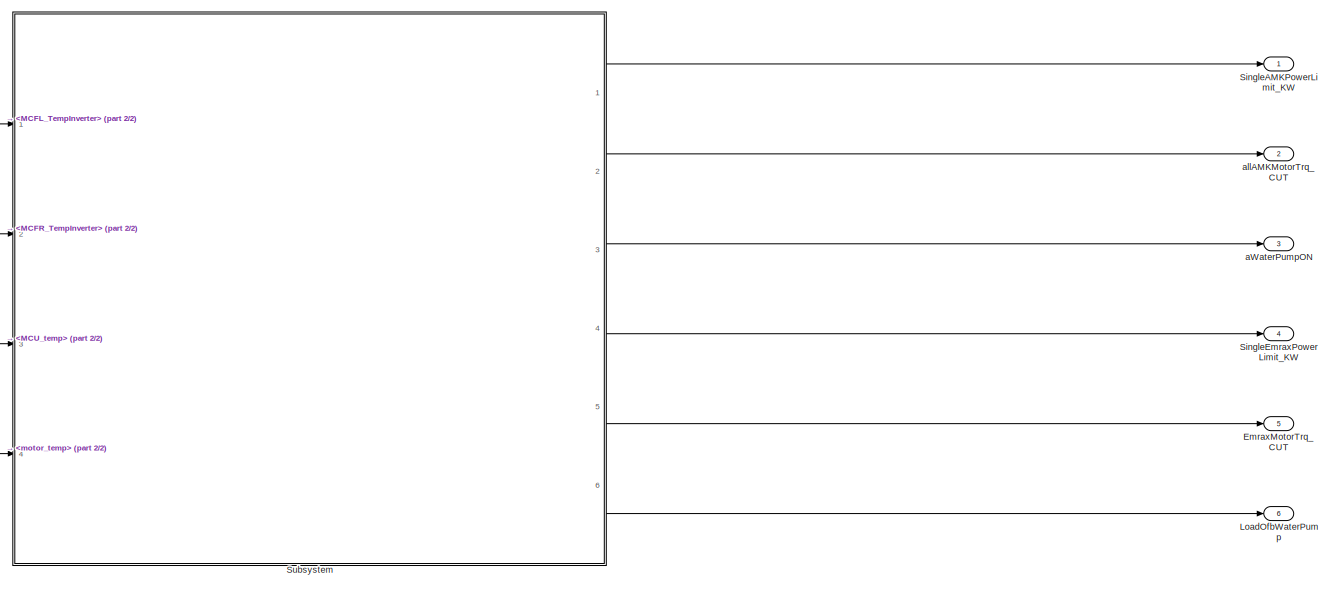
[diagram: root canvas - part 1/2, most of the canvas]
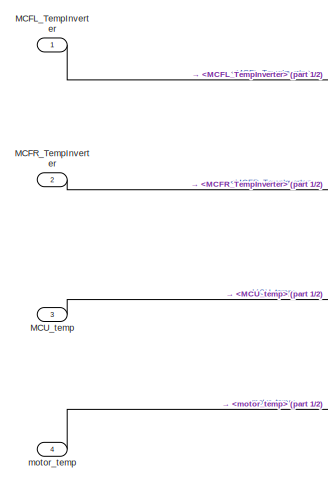
[diagram: root canvas - part 2/2, left side, full height]
MODEL slx_15fae6f88213
KIND model
CONFIG AbsTol = auto
CONFIG EnableMultiTasking = off
CONFIG FixedStep = auto
CONFIG MaxStep = auto
CONFIG MinStep = auto
CONFIG RelTol = 1e-3
CONFIG SampleTimeConstraint = Unconstrained
CONFIG Solver = VariableStepAuto
CONFIG SolverName = VariableStepAuto
CONFIG StartTime = 0.0
CONFIG StopTime = 10.0
BLOCK [Outport] EmraxMotorTrq_CUT
  IconDisplay = Port number
  Port = 5
BLOCK [Outport] LoadOfbWaterPump
  IconDisplay = Port number
  Port = 6
BLOCK [Inport] MCFL_TempInverter
  IconDisplay = Port number
BLOCK [Inport] MCFR_TempInverter
  IconDisplay = Port number
  Port = 2
BLOCK [Inport] MCU_temp
  IconDisplay = Port number
  Port = 3
BLOCK [Outport] SingleAMKPowerLimit_KW
  IconDisplay = Port number
BLOCK [Outport] SingleEmraxPowerLimit_KW
  IconDisplay = Port number
  Port = 4
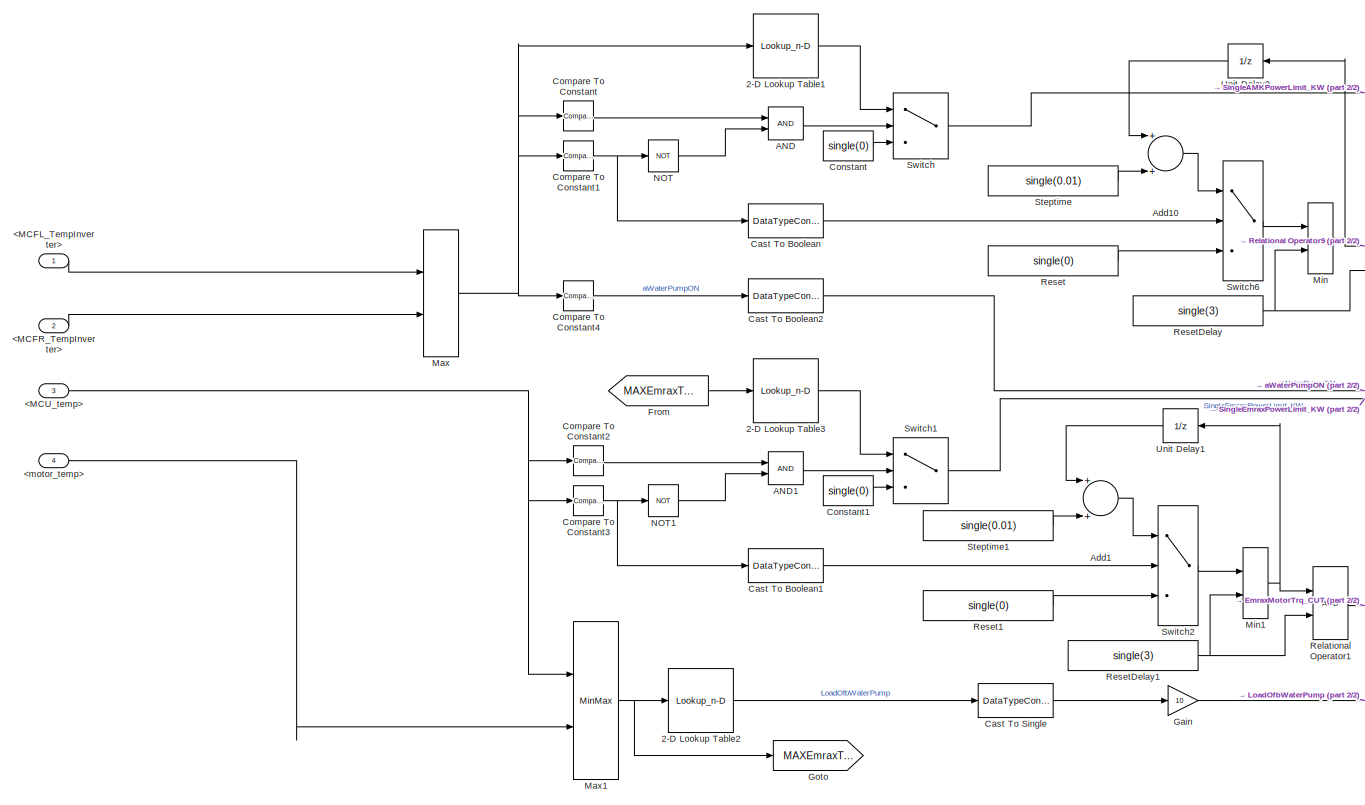
[diagram: Subsystem - part 1/2, most of the canvas]
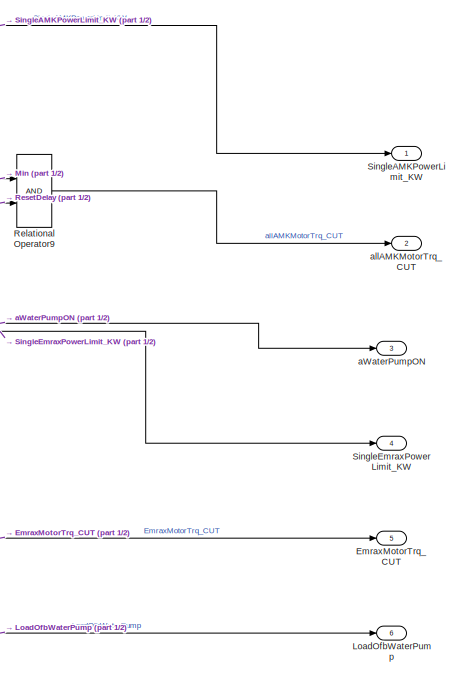
[diagram: Subsystem - part 2/2, right side, full height]
BLOCK [SubSystem] Subsystem
  Ports = [4, 6]
  RequestExecContextInheritance = off
BLOCK [Lookup_n-D] Subsystem/2-D Lookup Table1
  BreakpointsForDimension1 = [35,40,41,42,43,44,45,50]
  BreakpointsForDimension2 = [1:3]
  InternalRulePriority = Speed
  NumberOfTableDimensions = 1
  Ports = [1, 1]
  RndMeth = Simplest
  Table = [0,0,0.2,0.4,0.6,0.8,1,1]
BLOCK [Lookup_n-D] Subsystem/2-D Lookup Table2
  BreakpointsForDimension1 = [0;25;30;35;37;40;50]
  BreakpointsForDimension2 = [1:3]
  InternalRulePriority = Speed
  NumberOfTableDimensions = 1
  Ports = [1, 1]
  RndMeth = Simplest
  Table = [0;0;20;40;70;100;100]
BLOCK [Lookup_n-D] Subsystem/2-D Lookup Table3
  BreakpointsForDimension1 = [35,40,41,42,43,44,45,50]
  BreakpointsForDimension2 = [1:3]
  InternalRulePriority = Speed
  NumberOfTableDimensions = 1
  Ports = [1, 1]
  RndMeth = Simplest
  Table = [0,0,0.2,0.4,0.6,0.8,1,1]
BLOCK [Inport] Subsystem/<MCFL_TempInverter>
  IconDisplay = Port number
BLOCK [Inport] Subsystem/<MCFR_TempInverter>
  IconDisplay = Port number
  Port = 2
BLOCK [Inport] Subsystem/<MCU_temp>
  IconDisplay = Port number
  Port = 3
BLOCK [Inport] Subsystem/<motor_temp>
  IconDisplay = Port number
  Port = 4
BLOCK [Logic] Subsystem/AND
  AllPortsSameDT = off
  OutDataTypeStr = boolean
  Ports = [2, 1]
BLOCK [Logic] Subsystem/AND1
  AllPortsSameDT = off
  OutDataTypeStr = boolean
  Ports = [2, 1]
BLOCK [Sum] Subsystem/Add1
  InputSameDT = off
  OutDataTypeStr = Inherit: Inherit via internal rule
  Ports = [2, 1]
  SaturateOnIntegerOverflow = off
BLOCK [Sum] Subsystem/Add10
  InputSameDT = off
  OutDataTypeStr = Inherit: Inherit via internal rule
  Ports = [2, 1]
  SaturateOnIntegerOverflow = off
BLOCK [DataTypeConversion] Subsystem/Cast To Boolean
  OutDataTypeStr = boolean
  RndMeth = Floor
  SaturateOnIntegerOverflow = off
BLOCK [DataTypeConversion] Subsystem/Cast To Boolean1
  OutDataTypeStr = boolean
  RndMeth = Floor
  SaturateOnIntegerOverflow = off
BLOCK [DataTypeConversion] Subsystem/Cast To Boolean2
  OutDataTypeStr = boolean
  RndMeth = Floor
  SaturateOnIntegerOverflow = off
BLOCK [DataTypeConversion] Subsystem/Cast To Single
  OutDataTypeStr = single
  RndMeth = Floor
  SaturateOnIntegerOverflow = off
BLOCK [Reference] Subsystem/Compare To Constant  REF=simulink/Logic and Bit
Operations/Compare
To Constant
  Ports = [1, 1]
  SourceBlock = simulink/Logic and Bit\nOperations/Compare\nTo Constant
  SourceProductBaseCode = SL
  SourceProductName = Simulink
  SourceType = Compare To Constant
BLOCK [Reference] Subsystem/Compare To Constant1  REF=simulink/Logic and Bit
Operations/Compare
To Constant
  Ports = [1, 1]
  SourceBlock = simulink/Logic and Bit\nOperations/Compare\nTo Constant
  SourceProductBaseCode = SL
  SourceProductName = Simulink
  SourceType = Compare To Constant
BLOCK [Reference] Subsystem/Compare To Constant2  REF=simulink/Logic and Bit
Operations/Compare
To Constant
  Ports = [1, 1]
  SourceBlock = simulink/Logic and Bit\nOperations/Compare\nTo Constant
  SourceProductBaseCode = SL
  SourceProductName = Simulink
  SourceType = Compare To Constant
BLOCK [Reference] Subsystem/Compare To Constant3  REF=simulink/Logic and Bit
Operations/Compare
To Constant
  Ports = [1, 1]
  SourceBlock = simulink/Logic and Bit\nOperations/Compare\nTo Constant
  SourceProductBaseCode = SL
  SourceProductName = Simulink
  SourceType = Compare To Constant
BLOCK [Reference] Subsystem/Compare To Constant4  REF=simulink/Logic and Bit
Operations/Compare
To Constant
  Ports = [1, 1]
  SourceBlock = simulink/Logic and Bit\nOperations/Compare\nTo Constant
  SourceProductBaseCode = SL
  SourceProductName = Simulink
  SourceType = Compare To Constant
BLOCK [Constant] Subsystem/Constant
  Value = single(0)
BLOCK [Constant] Subsystem/Constant1
  Value = single(0)
BLOCK [Outport] Subsystem/EmraxMotorTrq_CUT
  IconDisplay = Port number
  Port = 5
BLOCK [From] Subsystem/From
  GotoTag = MAXEmraxTemp
BLOCK [Gain] Subsystem/Gain
  Gain = 10
  OutDataTypeStr = Inherit: Inherit via internal rule
  ParamDataTypeStr = Inherit: Inherit via internal rule
  SaturateOnIntegerOverflow = off
BLOCK [Goto] Subsystem/Goto
  GotoTag = MAXEmraxTemp
BLOCK [Outport] Subsystem/LoadOfbWaterPump
  IconDisplay = Port number
  Port = 6
BLOCK [MinMax] Subsystem/Max
  Function = max
  InputSameDT = off
  Inputs = 2
  Ports = [2, 1]
  SaturateOnIntegerOverflow = off
BLOCK [MinMax] Subsystem/Max1
  Function = max
  InputSameDT = off
  Inputs = 2
  Ports = [2, 1]
  SaturateOnIntegerOverflow = off
BLOCK [MinMax] Subsystem/Min
  InputSameDT = off
  Inputs = 2
  Ports = [2, 1]
  SaturateOnIntegerOverflow = off
BLOCK [MinMax] Subsystem/Min1
  InputSameDT = off
  Inputs = 2
  Ports = [2, 1]
  SaturateOnIntegerOverflow = off
BLOCK [Logic] Subsystem/NOT
  AllPortsSameDT = off
  Operator = NOT
  OutDataTypeStr = boolean
  Ports = [1, 1]
BLOCK [Logic] Subsystem/NOT1
  AllPortsSameDT = off
  Operator = NOT
  OutDataTypeStr = boolean
  Ports = [1, 1]
BLOCK [RelationalOperator] Subsystem/Relational Operator1
  InputSameDT = off
  OutDataTypeStr = boolean
  Ports = [2, 1]
  RndMeth = Simplest
BLOCK [RelationalOperator] Subsystem/Relational Operator9
  InputSameDT = off
  OutDataTypeStr = boolean
  Ports = [2, 1]
  RndMeth = Simplest
BLOCK [Constant] Subsystem/Reset
  Value = single(0)
BLOCK [Constant] Subsystem/Reset1
  Value = single(0)
BLOCK [Constant] Subsystem/ResetDelay
  Value = single(3)
BLOCK [Constant] Subsystem/ResetDelay1
  Value = single(3)
BLOCK [Outport] Subsystem/SingleAMKPowerLimit_KW
  IconDisplay = Port number
BLOCK [Outport] Subsystem/SingleEmraxPowerLimit_KW
  IconDisplay = Port number
  Port = 4
BLOCK [Constant] Subsystem/Steptime
  Value = single(0.01)
BLOCK [Constant] Subsystem/Steptime1
  Value = single(0.01)
BLOCK [Switch] Subsystem/Switch
  Criteria = u2 ~= 0
  InputSameDT = off
  SaturateOnIntegerOverflow = off
BLOCK [Switch] Subsystem/Switch1
  Criteria = u2 ~= 0
  InputSameDT = off
  SaturateOnIntegerOverflow = off
BLOCK [Switch] Subsystem/Switch2
  Criteria = u2 ~= 0
  InputSameDT = off
  SaturateOnIntegerOverflow = off
BLOCK [Switch] Subsystem/Switch6
  Criteria = u2 ~= 0
  InputSameDT = off
  SaturateOnIntegerOverflow = off
BLOCK [UnitDelay] Subsystem/Unit Delay1
  InputProcessing = Elements as channels (sample based)
  SampleTime = -1
BLOCK [UnitDelay] Subsystem/Unit Delay2
  InputProcessing = Elements as channels (sample based)
  SampleTime = -1
BLOCK [Outport] Subsystem/aWaterPumpON
  IconDisplay = Port number
  Port = 3
BLOCK [Outport] Subsystem/allAMKMotorTrq_CUT
  IconDisplay = Port number
  Port = 2
BLOCK [Outport] aWaterPumpON
  IconDisplay = Port number
  Port = 3
BLOCK [Outport] allAMKMotorTrq_CUT
  IconDisplay = Port number
  Port = 2
BLOCK [Inport] motor_temp
  IconDisplay = Port number
  Port = 4
LINE MCFL_TempInverter:1 -> Subsystem:1
LINE MCFR_TempInverter:1 -> Subsystem:2
LINE MCU_temp:1 -> Subsystem:3
LINE Subsystem/2-D Lookup Table1:1 -> Subsystem/Switch:1
LINE Subsystem/2-D Lookup Table2:1 -> Subsystem/Cast To Single:1
LINE Subsystem/2-D Lookup Table3:1 -> Subsystem/Switch1:1
LINE Subsystem/<MCFL_TempInverter>:1 -> Subsystem/Max:1
LINE Subsystem/<MCFR_TempInverter>:1 -> Subsystem/Max:2
NET Subsystem/<MCU_temp>:1 -> Subsystem/Compare To Constant2:1, Subsystem/Compare To Constant3:1, Subsystem/Max1:1
LINE Subsystem/<motor_temp>:1 -> Subsystem/Max1:2
LINE Subsystem/AND1:1 -> Subsystem/Switch1:2
LINE Subsystem/AND:1 -> Subsystem/Switch:2
LINE Subsystem/Add10:1 -> Subsystem/Switch6:1
LINE Subsystem/Add1:1 -> Subsystem/Switch2:1
LINE Subsystem/Cast To Boolean1:1 -> Subsystem/Switch2:2
LINE Subsystem/Cast To Boolean2:1 -> Subsystem/aWaterPumpON:1
LINE Subsystem/Cast To Boolean:1 -> Subsystem/Switch6:2
LINE Subsystem/Cast To Single:1 -> Subsystem/Gain:1
NET Subsystem/Compare To Constant1:1 -> Subsystem/Cast To Boolean:1, Subsystem/NOT:1
LINE Subsystem/Compare To Constant2:1 -> Subsystem/AND1:1
NET Subsystem/Compare To Constant3:1 -> Subsystem/Cast To Boolean1:1, Subsystem/NOT1:1
LINE Subsystem/Compare To Constant4:1 -> Subsystem/Cast To Boolean2:1
LINE Subsystem/Compare To Constant:1 -> Subsystem/AND:1
LINE Subsystem/Constant1:1 -> Subsystem/Switch1:3
LINE Subsystem/Constant:1 -> Subsystem/Switch:3
LINE Subsystem/From:1 -> Subsystem/2-D Lookup Table3:1
LINE Subsystem/Gain:1 -> Subsystem/LoadOfbWaterPump:1
NET Subsystem/Max1:1 -> Subsystem/2-D Lookup Table2:1, Subsystem/Goto:1
NET Subsystem/Max:1 -> Subsystem/2-D Lookup Table1:1, Subsystem/Compare To Constant1:1, Subsystem/Compare To Constant4:1, Subsystem/Compare To Constant:1
NET Subsystem/Min1:1 -> Subsystem/Relational Operator1:1, Subsystem/Unit Delay1:1
NET Subsystem/Min:1 -> Subsystem/Relational Operator9:1, Subsystem/Unit Delay2:1
LINE Subsystem/NOT1:1 -> Subsystem/AND1:2
LINE Subsystem/NOT:1 -> Subsystem/AND:2
LINE Subsystem/Relational Operator1:1 -> Subsystem/EmraxMotorTrq_CUT:1
LINE Subsystem/Relational Operator9:1 -> Subsystem/allAMKMotorTrq_CUT:1
LINE Subsystem/Reset1:1 -> Subsystem/Switch2:3
LINE Subsystem/Reset:1 -> Subsystem/Switch6:3
NET Subsystem/ResetDelay1:1 -> Subsystem/Min1:2, Subsystem/Relational Operator1:2
NET Subsystem/ResetDelay:1 -> Subsystem/Min:2, Subsystem/Relational Operator9:2
LINE Subsystem/Steptime1:1 -> Subsystem/Add1:2
LINE Subsystem/Steptime:1 -> Subsystem/Add10:2
LINE Subsystem/Switch1:1 -> Subsystem/SingleEmraxPowerLimit_KW:1
LINE Subsystem/Switch2:1 -> Subsystem/Min1:1
LINE Subsystem/Switch6:1 -> Subsystem/Min:1
LINE Subsystem/Switch:1 -> Subsystem/SingleAMKPowerLimit_KW:1
LINE Subsystem/Unit Delay1:1 -> Subsystem/Add1:1
LINE Subsystem/Unit Delay2:1 -> Subsystem/Add10:1
LINE Subsystem:1 -> SingleAMKPowerLimit_KW:1
LINE Subsystem:2 -> allAMKMotorTrq_CUT:1
LINE Subsystem:3 -> aWaterPumpON:1
LINE Subsystem:4 -> SingleEmraxPowerLimit_KW:1
LINE Subsystem:5 -> EmraxMotorTrq_CUT:1
LINE Subsystem:6 -> LoadOfbWaterPump:1
LINE motor_temp:1 -> Subsystem:4
note: NET lines group one-source signal fan-out (src -> all destinations, sorted); 1:1 wires keep LINE
